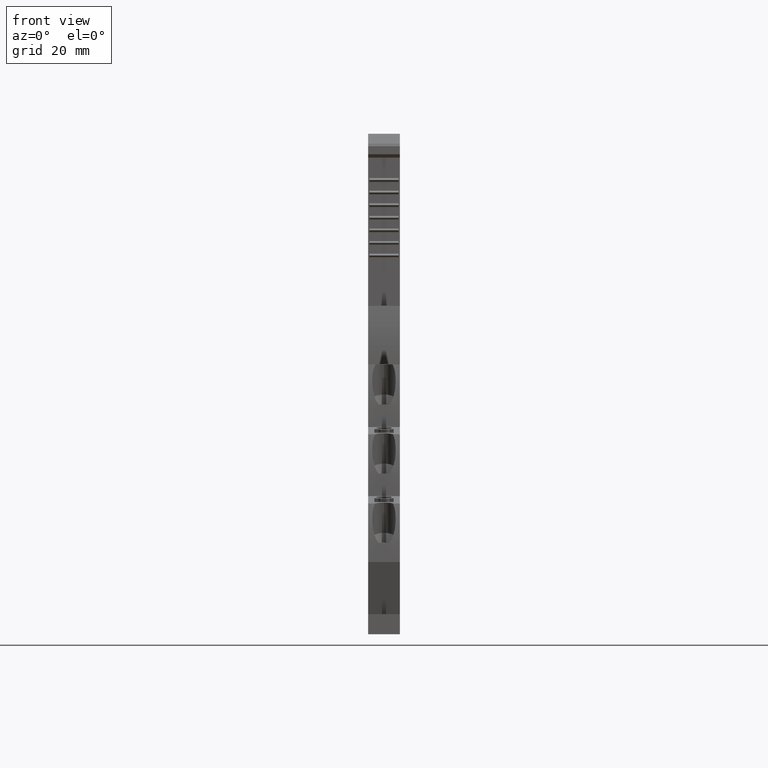
[diagram: clean part render]
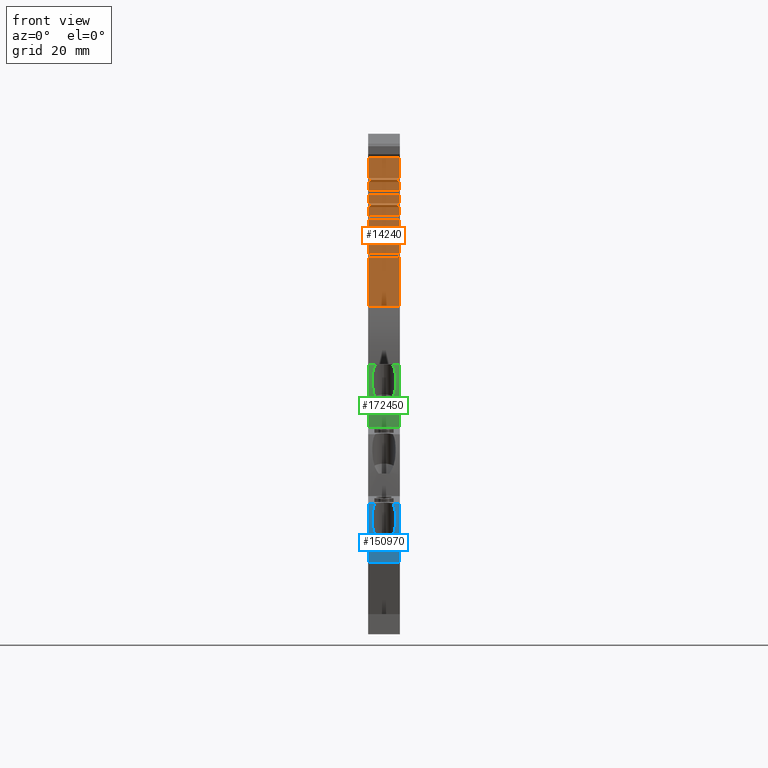
[diagram: same view with three faces highlighted in distinct colors, each labeled with its STEP entity id]
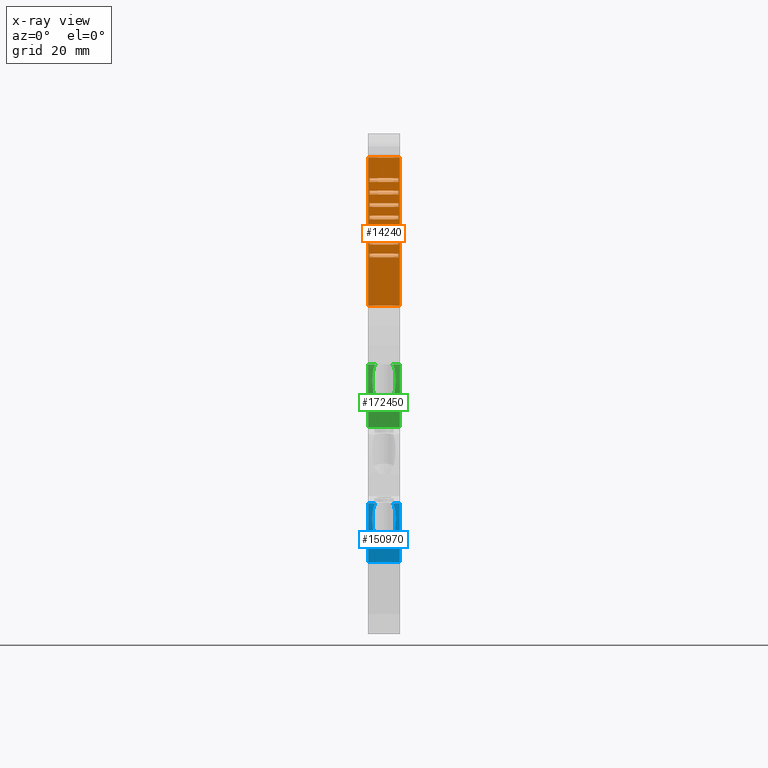
[diagram: x-ray of the same camera — body ghosted, the three highlighted faces saturated]
A machine part, front view with three faces highlighted in distinct colors.
The next image is the same camera in x-ray (body ghosted, the three faces saturated) — at least one of them is partly hidden behind the body in this view.
Their STEP definitions:

[orange] entity #14240 — the highlighted planar face has unit normal (-0, 1, -0).
#880=CARTESIAN_POINT('',(-32.2143223474418,87.6620689298493,
9.67371577147208E-8));
#890=VERTEX_POINT('',#880);
#920=CARTESIAN_POINT('',(-32.2143310897264,58.3109665443083,
6.43475239809484E-8));
#930=DIRECTION('',(2.97852011095547E-7,0.999999999999956,
1.10352358518995E-9));
#940=VECTOR('',#930,1.);
#950=LINE('',#920,#940);
#960=CARTESIAN_POINT('',(-32.2143310897266,58.3109665443082,
6.43475239809492E-8));
#970=VERTEX_POINT('',#960);
#980=EDGE_CURVE('',#970,#890,#950,.T.);
#11090=CARTESIAN_POINT('',(-32.2143310897266,58.3109665443082,0.1));
#11100=VERTEX_POINT('',#11090);
#11150=CARTESIAN_POINT('',(-32.2143310897266,58.3109665443082,0.));
#11160=DIRECTION('',(3.24428399143164E-16,-1.24896871109641E-20,1.));
#11170=VECTOR('',#11160,1.);
#11180=LINE('',#11150,#11170);
#11190=EDGE_CURVE('',#970,#11100,#11180,.T.);
#11310=CARTESIAN_POINT('',(-32.2143274041796,70.6847189324796,
7.80022515785963E-8));
#11320=DIRECTION('',(0.999999999999956,-2.97852008862565E-7,
-3.2442839914687E-16));
#11330=DIRECTION('',(2.97852008862565E-7,0.999999999999956,
1.10352358518995E-9));
#11340=AXIS2_PLACEMENT_3D('',#11310,#11320,#11330);
#11350=PLANE('',#11340);
#11360=CARTESIAN_POINT('',(-32.2143250430045,78.6120620819527,0.));
#11370=DIRECTION('',(-1.55164670466063E-15,-4.12022839850694E-9,-1.));
#11380=VECTOR('',#11370,1.);
#11390=LINE('',#11360,#11380);
#11400=CARTESIAN_POINT('',(-32.2143250430045,78.6120621068801,
6.05000054290741));
#11410=VERTEX_POINT('',#11400);
#11420=CARTESIAN_POINT('',(-32.2143250430045,78.6120620793876,
0.25000054290741));
#11430=VERTEX_POINT('',#11420);
#11440=EDGE_CURVE('',#11410,#11430,#11390,.T.);
#11450=ORIENTED_EDGE('',*,*,#11440,.F.);
#11460=CARTESIAN_POINT('',(-32.2143484577651,0.,0.250000629657584));
#11470=DIRECTION('',(-2.97852008862565E-7,-0.999999999999956,
1.10352243317071E-9));
#11480=VECTOR('',#11470,1.);
#11490=LINE('',#11460,#11480);
#11500=CARTESIAN_POINT('',(-32.2143252665163,77.8616497248532,
0.250000543735507));
#11510=VERTEX_POINT('',#11500);
#11520=EDGE_CURVE('',#11430,#11510,#11490,.T.);
#11530=ORIENTED_EDGE('',*,*,#11520,.F.);
#11540=CARTESIAN_POINT('',(-32.2143252665163,77.8616497253159,0.));
#11550=DIRECTION('',(-2.26831076595493E-16,-1.85078313854415E-9,1.));
#11560=VECTOR('',#11550,1.);
#11570=LINE('',#11540,#11560);
#11580=CARTESIAN_POINT('',(-32.2143252665163,77.8616497141186,
6.05000054373551));
#11590=VERTEX_POINT('',#11580);
#11600=EDGE_CURVE('',#11510,#11590,#11570,.T.);
#11610=ORIENTED_EDGE('',*,*,#11600,.F.);
#11620=CARTESIAN_POINT('',(-32.2143484577651,0.,6.05000062965759));
#11630=DIRECTION('',(-2.97852008862565E-7,-0.999999999999956,
1.10352243317071E-9));
#11640=VECTOR('',#11630,1.);
#11650=LINE('',#11620,#11640);
#11660=EDGE_CURVE('',#11410,#11590,#11650,.T.);
#11670=ORIENTED_EDGE('',*,*,#11660,.T.);
#11680=EDGE_LOOP('',(#11670,#11610,#11530,#11450));
#11690=FACE_BOUND('',#11680,.T.);
#11700=CARTESIAN_POINT('',(-32.214327494608,70.3811172634535,0.));
#11710=DIRECTION('',(-2.26831076595493E-16,-1.85078313854415E-9,1.));
#11720=VECTOR('',#11710,1.);
#11730=LINE('',#11700,#11720);
#11740=CARTESIAN_POINT('',(-32.214327494608,70.3811172629908,
0.250000551990444));
#11750=VERTEX_POINT('',#11740);
#11760=CARTESIAN_POINT('',(-32.214327494608,70.3811172522563,
6.05000055199045));
#11770=VERTEX_POINT('',#11760);
#11780=EDGE_CURVE('',#11750,#11770,#11730,.T.);
#11790=ORIENTED_EDGE('',*,*,#11780,.F.);
#11800=CARTESIAN_POINT('',(-32.2143484577651,0.,6.05000062965759));
#11810=DIRECTION('',(-2.97852008862565E-7,-0.999999999999956,
1.10352243317071E-9));
#11820=VECTOR('',#11810,1.);
#11830=LINE('',#11800,#11820);
#11840=CARTESIAN_POINT('',(-32.2143272827693,71.0923385866765,
6.0500005512056));
#11850=VERTEX_POINT('',#11840);
#11860=EDGE_CURVE('',#11850,#11770,#11830,.T.);
#11870=ORIENTED_EDGE('',*,*,#11860,.T.);
#11880=CARTESIAN_POINT('',(-32.2143272827693,71.0923385617491,0.));
#11890=DIRECTION('',(-1.55164670466063E-15,-4.12022839850694E-9,-1.));
#11900=VECTOR('',#11890,1.);
#11910=LINE('',#11880,#11900);
#11920=CARTESIAN_POINT('',(-32.2143272827693,71.0923385627792,
0.250000551205594));
#11930=VERTEX_POINT('',#11920);
#11940=EDGE_CURVE('',#11850,#11930,#11910,.T.);
#11950=ORIENTED_EDGE('',*,*,#11940,.F.);
#11960=CARTESIAN_POINT('',(-32.2143484577651,0.,0.250000629657584));
#11970=DIRECTION('',(-2.97852008862565E-7,-0.999999999999956,
1.10352243317071E-9));
#11980=VECTOR('',#11970,1.);
#11990=LINE('',#11960,#11980);
#12000=EDGE_CURVE('',#11930,#11750,#11990,.T.);
#12010=ORIENTED_EDGE('',*,*,#12000,.F.);
#12020=EDGE_LOOP('',(#12010,#11950,#11870,#11790));
#12030=FACE_BOUND('',#12020,.T.);
#12040=CARTESIAN_POINT('',(-32.2143267519108,72.8746280840744,0.));
#12050=DIRECTION('',(-2.26831076595493E-16,-1.85078313854415E-9,1.));
#12060=VECTOR('',#12050,1.);
#12070=LINE('',#12040,#12060);
#12080=CARTESIAN_POINT('',(-32.2143267519108,72.8746280836117,
0.250000549238797));
#12090=VERTEX_POINT('',#12080);
#12100=CARTESIAN_POINT('',(-32.2143267519108,72.8746280728771,
6.0500005492388));
#12110=VERTEX_POINT('',#12100);
#12120=EDGE_CURVE('',#12090,#12110,#12070,.T.);
#12130=ORIENTED_EDGE('',*,*,#12120,.F.);
#12140=CARTESIAN_POINT('',(-32.2143484577651,0.,6.05000062965759));
#12150=DIRECTION('',(-2.97852008862565E-7,-0.999999999999956,
1.10352243317071E-9));
#12160=VECTOR('',#12150,1.);
#12170=LINE('',#12140,#12160);
#12180=CARTESIAN_POINT('',(-32.214326536181,73.598913093411,
6.05000054843954));
#12190=VERTEX_POINT('',#12180);
#12200=EDGE_CURVE('',#12190,#12110,#12170,.T.);
#12210=ORIENTED_EDGE('',*,*,#12200,.T.);
#12220=CARTESIAN_POINT('',(-32.214326536181,73.5989130684836,0.));
#12230=DIRECTION('',(-1.55164670466063E-15,-4.12022839850694E-9,-1.));
#12240=VECTOR('',#12230,1.);
#12250=LINE('',#12220,#12240);
#12260=CARTESIAN_POINT('',(-32.214326536181,73.5989130529119,
0.250000548439532));
#12270=VERTEX_POINT('',#12260);
#12280=EDGE_CURVE('',#12190,#12270,#12250,.T.);
#12290=ORIENTED_EDGE('',*,*,#12280,.F.);
#12300=CARTESIAN_POINT('',(-32.2143484577651,0.,0.250000629657584));
#12310=DIRECTION('',(-2.97852008862565E-7,-0.999999999999956,
1.10352243317071E-9));
#12320=VECTOR('',#12310,1.);
#12330=LINE('',#12300,#12320);
#12340=EDGE_CURVE('',#12270,#12090,#12330,.T.);
#12350=ORIENTED_EDGE('',*,*,#12340,.F.);
#12360=EDGE_LOOP('',(#12350,#12290,#12210,#12130));
#12370=FACE_BOUND('',#12360,.T.);
#12380=CARTESIAN_POINT('',(-32.2143260092136,75.3681389046951,0.));
#12390=DIRECTION('',(-2.26831076595493E-16,-1.85078313854415E-9,1.));
#12400=VECTOR('',#12390,1.);
#12410=LINE('',#12380,#12400);
#12420=CARTESIAN_POINT('',(-32.2143260092136,75.3681389042324,
0.250000546487152));
#12430=VERTEX_POINT('',#12420);
#12440=CARTESIAN_POINT('',(-32.2143260092136,75.3681388934979,
6.05000054648715));
#12450=VERTEX_POINT('',#12440);
#12460=EDGE_CURVE('',#12430,#12450,#12410,.T.);
#12470=ORIENTED_EDGE('',*,*,#12460,.F.);
#12480=CARTESIAN_POINT('',(-32.2143484577651,0.,6.05000062965759));
#12490=DIRECTION('',(-2.97852008862565E-7,-0.999999999999956,
1.10352243317071E-9));
#12500=VECTOR('',#12490,1.);
#12510=LINE('',#12480,#12500);
#12520=CARTESIAN_POINT('',(-32.2143257895928,76.1054876001455,
6.05000054567347));
#12530=VERTEX_POINT('',#12520);
#12540=EDGE_CURVE('',#12530,#12450,#12510,.T.);
#12550=ORIENTED_EDGE('',*,*,#12540,.T.);
#12560=CARTESIAN_POINT('',(-32.2143257895928,76.1054875752181,0.));
#12570=DIRECTION('',(-1.55164670466063E-15,-4.12022839850694E-9,-1.));
#12580=VECTOR('',#12570,1.);
#12590=LINE('',#12560,#12580);
#12600=CARTESIAN_POINT('',(-32.2143257895928,76.1054875592681,
0.250000545673471));
#12610=VERTEX_POINT('',#12600);
#12620=EDGE_CURVE('',#12530,#12610,#12590,.T.);
#12630=ORIENTED_EDGE('',*,*,#12620,.F.);
#12640=CARTESIAN_POINT('',(-32.2143484577651,0.,0.250000629657584));
#12650=DIRECTION('',(-2.97852008862565E-7,-0.999999999999956,
1.10352243317071E-9));
#12660=VECTOR('',#12650,1.);
#12670=LINE('',#12640,#12660);
#12680=EDGE_CURVE('',#12610,#12430,#12670,.T.);
#12690=ORIENTED_EDGE('',*,*,#12680,.F.);
#12700=EDGE_LOOP('',(#12690,#12630,#12550,#12470));
#12710=FACE_BOUND('',#12700,.T.);
#12720=CARTESIAN_POINT('',(-32.2143280293575,68.5857640550146,0.));
#12730=DIRECTION('',(-1.55164670466063E-15,-4.12022839850694E-9,-1.));
#12740=VECTOR('',#12730,1.);
#12750=LINE('',#12720,#12740);
#12760=CARTESIAN_POINT('',(-32.2143280293575,68.5857640728843,
6.05000055397166));
#12770=VERTEX_POINT('',#12760);
#12780=CARTESIAN_POINT('',(-32.2143280293575,68.5857640560447,
0.250000553971655));
#12790=VERTEX_POINT('',#12780);
#12800=EDGE_CURVE('',#12770,#12790,#12750,.T.);
#12810=ORIENTED_EDGE('',*,*,#12800,.F.);
#12820=CARTESIAN_POINT('',(-32.2143484577651,0.,0.250000629657584));
#12830=DIRECTION('',(-2.97852008862565E-7,-0.999999999999956,
1.10352243317071E-9));
#12840=VECTOR('',#12830,1.);
#12850=LINE('',#12820,#12840);
#12860=CARTESIAN_POINT('',(-32.2143282373052,67.8876064423702,
0.250000554742087));
#12870=VERTEX_POINT('',#12860);
#12880=EDGE_CURVE('',#12790,#12870,#12850,.T.);
#12890=ORIENTED_EDGE('',*,*,#12880,.F.);
#12900=CARTESIAN_POINT('',(-32.2143282373052,67.8876064428328,0.));
#12910=DIRECTION('',(-2.26831076595493E-16,-1.85078313854415E-9,1.));
#12920=VECTOR('',#12910,1.);
#12930=LINE('',#12900,#12920);
#12940=CARTESIAN_POINT('',(-32.2143282373052,67.8876064161181,
6.05000055474209));
#12950=VERTEX_POINT('',#12940);
#12960=EDGE_CURVE('',#12870,#12950,#12930,.T.);
#12970=ORIENTED_EDGE('',*,*,#12960,.F.);
#12980=CARTESIAN_POINT('',(-32.2143484577651,0.,6.05000062965759));
#12990=DIRECTION('',(-2.97852008862565E-7,-0.999999999999956,
1.10352243317071E-9));
#13000=VECTOR('',#12990,1.);
#13010=LINE('',#12980,#13000);
#13020=EDGE_CURVE('',#12770,#12950,#13010,.T.);
#13030=ORIENTED_EDGE('',*,*,#13020,.T.);
#13040=EDGE_LOOP('',(#13030,#12970,#12890,#12810));
#13050=FACE_BOUND('',#13040,.T.);
#13060=CARTESIAN_POINT('',(-32.2143237811219,82.8486713665573,0.));
#13070=DIRECTION('',(-2.26831076595493E-16,-1.85078313854415E-9,1.));
#13080=VECTOR('',#13070,1.);
#13090=LINE('',#13060,#13080);
#13100=CARTESIAN_POINT('',(-32.2143237811219,82.8486713660946,
0.250000538232218));
#13110=VERTEX_POINT('',#13100);
#13120=CARTESIAN_POINT('',(-32.2143237811219,82.8486713553601,
6.05000053823222));
#13130=VERTEX_POINT('',#13120);
#13140=EDGE_CURVE('',#13110,#13130,#13090,.T.);
#13150=ORIENTED_EDGE('',*,*,#13140,.F.);
#13160=CARTESIAN_POINT('',(-32.2143484577651,0.,6.05000062965759));
#13170=DIRECTION('',(-2.97852008862565E-7,-0.999999999999956,
1.10352243317071E-9));
#13180=VECTOR('',#13170,1.);
#13190=LINE('',#13160,#13180);
#13200=CARTESIAN_POINT('',(-32.214323549828,83.6252111203491,
6.05000053737529));
#13210=VERTEX_POINT('',#13200);
#13220=EDGE_CURVE('',#13210,#13130,#13190,.T.);
#13230=ORIENTED_EDGE('',*,*,#13220,.T.);
#13240=CARTESIAN_POINT('',(-32.214323549828,83.6252110954218,0.));
#13250=DIRECTION('',(-1.55164670466063E-15,-4.12022839850694E-9,-1.));
#13260=VECTOR('',#13250,1.);
#13270=LINE('',#13240,#13260);
#13280=CARTESIAN_POINT('',(-32.214323549828,83.6252110964518,
0.250000537375287));
#13290=VERTEX_POINT('',#13280);
#13300=EDGE_CURVE('',#13210,#13290,#13270,.T.);
#13310=ORIENTED_EDGE('',*,*,#13300,.F.);
#13320=CARTESIAN_POINT('',(-32.2143484577651,0.,0.250000629657584));
#13330=DIRECTION('',(-2.97852008862565E-7,-0.999999999999956,
1.10352243317071E-9));
#13340=VECTOR('',#13330,1.);
#13350=LINE('',#13320,#13340);
#13360=EDGE_CURVE('',#13290,#13110,#13350,.T.);
#13370=ORIENTED_EDGE('',*,*,#13360,.F.);
#13380=EDGE_LOOP('',(#13370,#13310,#13230,#13150));
#13390=FACE_BOUND('',#13380,.T.);
#13400=CARTESIAN_POINT('',(-32.2143245238191,80.3551605459366,0.));
#13410=DIRECTION('',(-2.26831076595493E-16,-1.85078313854415E-9,1.));
#13420=VECTOR('',#13410,1.);
#13430=LINE('',#13400,#13420);
#13440=CARTESIAN_POINT('',(-32.2143245238191,80.3551605454739,
0.250000540983862));
#13450=VERTEX_POINT('',#13440);
#13460=CARTESIAN_POINT('',(-32.2143245238191,80.3551605347393,
6.05000054098386));
#13470=VERTEX_POINT('',#13460);
#13480=EDGE_CURVE('',#13450,#13470,#13430,.T.);
#13490=ORIENTED_EDGE('',*,*,#13480,.F.);
#13500=CARTESIAN_POINT('',(-32.2143484577651,0.,6.05000062965759));
#13510=DIRECTION('',(-2.97852008862565E-7,-0.999999999999956,
1.10352243317071E-9));
#13520=VECTOR('',#13510,1.);
#13530=LINE('',#13500,#13520);
#13540=CARTESIAN_POINT('',(-32.2143242964163,81.1186366136145,
6.05000054014135));
#13550=VERTEX_POINT('',#13540);
#13560=EDGE_CURVE('',#13550,#13470,#13530,.T.);
#13570=ORIENTED_EDGE('',*,*,#13560,.T.);
#13580=CARTESIAN_POINT('',(-32.2143242964163,81.1186365886871,0.));
#13590=DIRECTION('',(-1.55164670466063E-15,-4.12022839850694E-9,-1.));
#13600=VECTOR('',#13590,1.);
#13610=LINE('',#13580,#13600);
#13620=CARTESIAN_POINT('',(-32.2143242964163,81.1186365719804,
0.250000540141349));
#13630=VERTEX_POINT('',#13620);
#13640=EDGE_CURVE('',#13550,#13630,#13610,.T.);
#13650=ORIENTED_EDGE('',*,*,#13640,.F.);
#13660=CARTESIAN_POINT('',(-32.2143484577651,0.,0.250000629657584));
#13670=DIRECTION('',(-2.97852008862565E-7,-0.999999999999956,
1.10352243317071E-9));
#13680=VECTOR('',#13670,1.);
#13690=LINE('',#13660,#13680);
#13700=EDGE_CURVE('',#13630,#13450,#13690,.T.);
#13710=ORIENTED_EDGE('',*,*,#13700,.F.);
#13720=EDGE_LOOP('',(#13710,#13650,#13570,#13490));
#13730=FACE_BOUND('',#13720,.T.);
#13740=ORIENTED_EDGE('',*,*,#11190,.T.);
#13750=ORIENTED_EDGE('',*,*,#980,.F.);
#13760=CARTESIAN_POINT('',(-32.2143223474418,87.6620689298492,0.));
#13770=DIRECTION('',(-4.25831758759046E-18,-1.10352358519E-9,1.));
#13780=VECTOR('',#13770,1.);
#13790=LINE('',#13760,#13780);
#13800=CARTESIAN_POINT('',(-32.2143223474418,87.6620689228971,
6.30000000363741));
#13810=VERTEX_POINT('',#13800);
#13820=EDGE_CURVE('',#890,#13810,#13790,.T.);
#13830=ORIENTED_EDGE('',*,*,#13820,.F.);
#13840=CARTESIAN_POINT('',(-32.2143484577651,0.,6.30000000363738));
#13850=DIRECTION('',(2.97852008862565E-7,0.999999999999956,
3.78967331631682E-16));
#13860=VECTOR('',#13850,1.);
#13870=LINE('',#13840,#13860);
#13880=CARTESIAN_POINT('',(-32.2143310897266,58.3109665443096,
6.3000000036374));
#13890=VERTEX_POINT('',#13880);
#13900=EDGE_CURVE('',#13890,#13810,#13870,.T.);
#13910=ORIENTED_EDGE('',*,*,#13900,.T.);
#13920=CARTESIAN_POINT('',(-32.2143310897266,58.3109665443083,
6.30000000448426));
#13930=DIRECTION('',(0.,0.,-1.));
#13940=VECTOR('',#13930,1.);
#13950=LINE('',#13920,#13940);
#13960=CARTESIAN_POINT('',(-32.2143310897266,58.3109665443083,6.2));
#13970=VERTEX_POINT('',#13960);
#13980=EDGE_CURVE('',#13890,#13970,#13950,.T.);
#13990=ORIENTED_EDGE('',*,*,#13980,.F.);
#14000=CARTESIAN_POINT('',(-32.2143310897264,58.3109665443083,6.2));
#14010=DIRECTION('',(-2.97851983077681E-7,-0.999999999999956,0.));
#14020=VECTOR('',#14010,1.);
#14030=LINE('',#14000,#14020);
#14040=CARTESIAN_POINT('',(-32.2143311195118,58.2109665399162,6.2));
#14050=VERTEX_POINT('',#14040);
#14060=EDGE_CURVE('',#13970,#14050,#14030,.T.);
#14070=ORIENTED_EDGE('',*,*,#14060,.F.);
#14080=CARTESIAN_POINT('',(-32.2143311195118,58.2109665466478,
0.0999999999448238));
#14090=DIRECTION('',(0.,-1.10352412089834E-9,1.));
#14100=VECTOR('',#14090,1.);
#14110=LINE('',#14080,#14100);
#14120=CARTESIAN_POINT('',(-32.2143311195118,58.2109665466477,0.1));
#14130=VERTEX_POINT('',#14120);
#14140=EDGE_CURVE('',#14130,#14050,#14110,.T.);
#14150=ORIENTED_EDGE('',*,*,#14140,.T.);
#14160=CARTESIAN_POINT('',(-32.2143484577651,0.,0.1));
#14170=DIRECTION('',(-2.97852008862565E-7,-0.999999999999956,
-1.25466755312043E-20));
#14180=VECTOR('',#14170,1.);
#14190=LINE('',#14160,#14180);
#14200=EDGE_CURVE('',#11100,#14130,#14190,.T.);
#14210=ORIENTED_EDGE('',*,*,#14200,.T.);
#14220=EDGE_LOOP('',(#14210,#14150,#14070,#13990,#13910,#13830,#13750,
#13740));
#14230=FACE_OUTER_BOUND('',#14220,.T.);
#14240=ADVANCED_FACE('',(#11690,#12030,#12370,#12710,#13050,#13390,
#13730,#14230),#11350,.F.);

[blue] entity #150970 — the highlighted cylindrical surface (partial cylindrical patch) has radius 50 mm, axis along (1, -0, -0).
#20060=CARTESIAN_POINT('',(-74.3193258147242,18.9749312027264,
2.09392807915855E-8));
#20070=VERTEX_POINT('',#20060);
#20100=CARTESIAN_POINT('',(-25.6892608432084,7.3509568021111,
8.1119513567074E-9));
#20110=DIRECTION('',(4.25831750061423E-18,1.10352358519E-9,-1.));
#20120=DIRECTION('',(-0.999976083260332,0.00691613384236382,
7.63211255516355E-12));
#20130=AXIS2_PLACEMENT_3D('',#20100,#20110,#20120);
#20140=CIRCLE('',#20130,50.);
#20150=CARTESIAN_POINT('',(-75.6892600077674,7.34181655580547,
8.10186490216067E-9));
#20160=VERTEX_POINT('',#20150);
#20170=EDGE_CURVE('',#20160,#20070,#20140,.T.);
#29020=CARTESIAN_POINT('',(-75.6892600077674,7.34181654885329,
6.29999994832275));
#29030=VERTEX_POINT('',#29020);
#29060=CARTESIAN_POINT('',(-25.6892608432084,7.3509567951589,
6.30000001193947));
#29070=DIRECTION('',(-7.92613670502504E-18,-1.10352358433843E-9,1.));
#29080=DIRECTION('',(-0.974090670017604,0.22615783555883,
2.49570497601326E-10));
#29090=AXIS2_PLACEMENT_3D('',#29060,#29070,#29080);
#29100=CIRCLE('',#29090,50.);
#29110=CARTESIAN_POINT('',(-74.3193258147242,18.9749311957742,
6.29999995006576));
#29120=VERTEX_POINT('',#29110);
#29130=EDGE_CURVE('',#29120,#29030,#29100,.T.);
#149210=CARTESIAN_POINT('',(-75.6892600077674,7.34181655580547,
8.10186466641882E-9));
#149220=DIRECTION('',(-4.25831752161686E-18,-1.10352358519E-9,1.));
#149230=VECTOR('',#149220,1.);
#149240=LINE('',#149210,#149230);
#149250=EDGE_CURVE('',#20160,#29030,#149240,.T.);
#149510=CARTESIAN_POINT('',(-25.6892608432084,7.3509568021111,
8.1119513567074E-9));
#149520=DIRECTION('',(-4.25831752161686E-18,-1.10352358519E-9,1.));
#149530=DIRECTION('',(1.,0.,4.25831752161686E-18));
#149540=AXIS2_PLACEMENT_3D('',#149510,#149520,#149530);
#149550=CYLINDRICAL_SURFACE('',#149540,50.);
#149560=CARTESIAN_POINT('',(-74.8724914011453,14.9367966716274,
3.05000009211796));
#149570=DIRECTION('',(0.390731082786406,-0.920504872852155,
3.8790817920332E-10));
#149580=DIRECTION('',(-0.920504872852155,-0.390731082786406,
-2.3333461952119E-9));
#149590=AXIS2_PLACEMENT_3D('',#149560,#149570,#149580);
#149600=CYLINDRICAL_SURFACE('',#149590,2.40000000000534);
#149610=CARTESIAN_POINT('',(-75.0459900437086,15.3455351232188,
5.45000009195101));
#149620=CARTESIAN_POINT('',(-75.10569514753,14.9769292355008,
5.45000013119511));
#149630=CARTESIAN_POINT('',(-75.1612524746313,14.6076367537863,
5.42549816217903));
#149640=CARTESIAN_POINT('',(-75.2123210516257,14.2405509492076,
5.37764678760847));
#149650=CARTESIAN_POINT('',(-75.2634343136721,13.8731439442103,
5.3297535430409));
#149660=CARTESIAN_POINT('',(-75.3102339803976,13.5064439174281,
5.2582400352505));
#149670=CARTESIAN_POINT('',(-75.3521894035882,13.1469491020186,
5.16147269507631));
#149680=CARTESIAN_POINT('',(-75.3941570410602,12.7873496286052,
5.06467718348982));
#149690=CARTESIAN_POINT('',(-75.4312699401871,12.4351695934841,
4.94338782858459));
#149700=CARTESIAN_POINT('',(-75.4636817688736,12.0951133619814,
4.78854499759829));
#149710=CARTESIAN_POINT('',(-75.4959712413141,11.7563408594636,
4.63428670590826));
#149720=CARTESIAN_POINT('',(-75.5236920870261,11.4266809049814,
4.44637317238107));
#149730=CARTESIAN_POINT('',(-75.5454068805918,11.141036255532,
4.20728596922176));
#149740=B_SPLINE_CURVE_WITH_KNOTS('',3,(#149610,#149620,#149630,#149640,
#149650,#149660,#149670,#149680,#149690,#149700,#149710,#149720,#149730)
,.UNSPECIFIED.,.F.,.F.,(4,3,3,3,4),(0.,1.12056555679303,2.24491725639276
,3.36774418116456,4.49134401465653),.UNSPECIFIED.);
#149750=SURFACE_CURVE('',#149740,(#149600,#149550),.CURVE_3D.);
#149760=CARTESIAN_POINT('',(-75.0459900437086,15.3455351232188,
5.45000009195101));
#149770=VERTEX_POINT('',#149760);
#149780=CARTESIAN_POINT('',(-75.545406880507,11.1410362567347,
4.20728596921744));
#149790=VERTEX_POINT('',#149780);
#149800=EDGE_CURVE('',#149770,#149790,#149750,.T.);
#149810=ORIENTED_EDGE('',*,*,#149800,.T.);
#149820=CARTESIAN_POINT('',(-25.6892608432084,7.3509567960969,
5.450000201303));
#149830=DIRECTION('',(9.14599996178806E-18,1.10352358439832E-9,-1.));
#149840=DIRECTION('',(-0.98713458688529,0.15989154879107,
1.76444086008587E-10));
#149850=AXIS2_PLACEMENT_3D('',#149820,#149830,#149840);
#149860=CIRCLE('',#149850,50.);
#149870=CARTESIAN_POINT('',(-74.8569826326739,16.4358417176902,
5.4500000930092));
#149880=VERTEX_POINT('',#149870);
#149890=EDGE_CURVE('',#149770,#149880,#149860,.T.);
#149900=ORIENTED_EDGE('',*,*,#149890,.F.);
#149910=CARTESIAN_POINT('',(-73.3502891594936,12.8862953988871,
3.0500000945042));
#149920=DIRECTION('',(-0.390731082790663,0.920504872850349,
-3.87834404964313E-10));
#149930=DIRECTION('',(0.920504872850349,0.390731082790663,
2.34003155988996E-9));
#149940=AXIS2_PLACEMENT_3D('',#149910,#149920,#149930);
#149950=CYLINDRICAL_SURFACE('',#149940,2.4);
#149960=CARTESIAN_POINT('',(-74.3193258147241,18.9749311972818,
4.93382135176862));
#149970=CARTESIAN_POINT('',(-74.3660630097971,18.7794014450762,
5.0280880019767));
#149980=CARTESIAN_POINT('',(-74.4134333218806,18.5759433846797,
5.10693736688872));
#149990=CARTESIAN_POINT('',(-74.4603355348481,18.3683191587156,
5.1725375932925));
#150000=CARTESIAN_POINT('',(-74.5072735989685,18.1605362287717,
5.23818796325229));
#150010=CARTESIAN_POINT('',(-74.5536293677247,17.9491213387877,
5.29042679175008));
#150020=CARTESIAN_POINT('',(-74.5989444421061,17.7356980186243,
5.33130463573307));
#150030=CARTESIAN_POINT('',(-74.6443038464573,17.5220659147511,
5.37222246891644));
#150040=CARTESIAN_POINT('',(-74.6886773924862,17.3061610811427,
5.40177505147993));
#150050=CARTESIAN_POINT('',(-74.7317529473209,17.0892301655761,
5.42121825539722));
#150060=CARTESIAN_POINT('',(-74.774834639836,16.8722683403063,
5.44066422970647));
#150070=CARTESIAN_POINT('',(-74.8166420615451,16.6541663298559,
5.45000012392432));
#150080=CARTESIAN_POINT('',(-74.856982632654,16.4358417176865,
5.45000009300867));
#150090=B_SPLINE_CURVE_WITH_KNOTS('',3,(#149960,#149970,#149980,#149990,
#150000,#150010,#150020,#150030,#150040,#150050,#150060,#150070,#150080)
,.UNSPECIFIED.,.F.,.F.,(4,3,3,3,4),(0.,0.667513679375471,1.3346826625279
,2.00101692647739,2.66713861002035),.UNSPECIFIED.);
#150100=SURFACE_CURVE('',#150090,(#149950,#149550),.CURVE_3D.);
#150110=CARTESIAN_POINT('',(-74.3193258147241,18.9749311972818,
4.93382135176862));
#150120=VERTEX_POINT('',#150110);
#150130=EDGE_CURVE('',#150120,#149880,#150100,.T.);
#150140=ORIENTED_EDGE('',*,*,#150130,.T.);
#150150=CARTESIAN_POINT('',(-74.3193258147241,18.9749312027264,
2.09392810543489E-8));
#150160=DIRECTION('',(-4.25831752161686E-18,-1.10352358519E-9,1.));
#150170=VECTOR('',#150160,1.);
#150180=LINE('',#150150,#150170);
#150190=EDGE_CURVE('',#150120,#29120,#150180,.T.);
#150200=ORIENTED_EDGE('',*,*,#150190,.F.);
#150210=ORIENTED_EDGE('',*,*,#29130,.F.);
#150220=ORIENTED_EDGE('',*,*,#149250,.T.);
#150230=ORIENTED_EDGE('',*,*,#20170,.F.);
#150240=CARTESIAN_POINT('',(-74.3193258147241,18.9749312027264,
2.09392810543489E-8));
#150250=DIRECTION('',(-4.25831752161686E-18,-1.10352358519E-9,1.));
#150260=VECTOR('',#150250,1.);
#150270=LINE('',#150240,#150260);
#150280=CARTESIAN_POINT('',(-74.3193258147241,18.9749312012187,
1.36617883447936));
#150290=VERTEX_POINT('',#150280);
#150300=EDGE_CURVE('',#20070,#150290,#150270,.T.);
#150310=ORIENTED_EDGE('',*,*,#150300,.F.);
#150320=CARTESIAN_POINT('',(-73.3502891599546,12.8862953987751,
3.25000009477781));
#150330=DIRECTION('',(-0.390731082790663,0.920504872850349,
-3.83954258107071E-10));
#150340=DIRECTION('',(0.920504872850349,0.390731082790663,
2.34054219565957E-9));
#150350=AXIS2_PLACEMENT_3D('',#150320,#150330,#150340);
#150360=CYLINDRICAL_SURFACE('',#150350,2.4);
#150370=CARTESIAN_POINT('',(-74.8569822333841,16.4358438835707,
0.850000093297283));
#150380=CARTESIAN_POINT('',(-74.8166417050931,16.6541682103077,
0.850000124187353));
#150390=CARTESIAN_POINT('',(-74.7748346891008,16.8722681308808,
0.85933589162387));
#150400=CARTESIAN_POINT('',(-74.7317526590575,17.0892316222998,
0.878782060975699));
#150410=CARTESIAN_POINT('',(-74.6886762555008,17.3061667784209,
0.898225690669822));
#150420=CARTESIAN_POINT('',(-74.6443047111205,17.5220618233128,
0.927776973987503));
#150430=CARTESIAN_POINT('',(-74.5989446789668,17.7356969078814,
0.968695336826546));
#150440=CARTESIAN_POINT('',(-74.5536276043495,17.9491296725555,
1.00957494854536));
#150450=CARTESIAN_POINT('',(-74.5072781225334,18.1605159069061,
1.06180651678931));
#150460=CARTESIAN_POINT('',(-74.460338974041,18.368303938732,
1.1274577826906));
#150470=CARTESIAN_POINT('',(-74.413436695688,18.5759287555454,
1.19305748030818));
#150480=CARTESIAN_POINT('',(-74.3660644647549,18.7793953622594,
1.27190924967483));
#150490=CARTESIAN_POINT('',(-74.3193258147241,18.9749312012188,
1.36617883447935));
#150500=B_SPLINE_CURVE_WITH_KNOTS('',3,(#150370,#150380,#150390,#150400,
#150410,#150420,#150430,#150440,#150450,#150460,#150470,#150480,#150490)
,.UNSPECIFIED.,.F.,.F.,(4,3,3,3,4),(0.,0.66612097185306,1.33245258956508
,1.99960640006842,2.66713641163688),.UNSPECIFIED.);
#150510=SURFACE_CURVE('',#150500,(#150360,#149550),.CURVE_3D.);
#150520=CARTESIAN_POINT('',(-74.8569822334122,16.4358438835759,
0.850000093297196));
#150530=VERTEX_POINT('',#150520);
#150540=EDGE_CURVE('',#150530,#150290,#150510,.T.);
#150550=ORIENTED_EDGE('',*,*,#150540,.T.);
#150560=CARTESIAN_POINT('',(-25.6892608432084,7.3509568011731,
0.850000201508021));
#150570=DIRECTION('',(-4.80635114721284E-18,-1.10352358508874E-9,1.));
#150580=DIRECTION('',(-0.983354431765362,0.18169772020425,
2.00507714875897E-10));
#150590=AXIS2_PLACEMENT_3D('',#150560,#150570,#150580);
#150600=CIRCLE('',#150590,50.);
#150610=CARTESIAN_POINT('',(-75.0459903284602,15.3455333703028,
0.85000009226412));
#150620=VERTEX_POINT('',#150610);
#150630=EDGE_CURVE('',#150530,#150620,#150600,.T.);
#150640=ORIENTED_EDGE('',*,*,#150630,.F.);
#150650=CARTESIAN_POINT('',(-74.8724914016064,14.9367966715155,
3.25000009243987));
#150660=DIRECTION('',(0.390731082786406,-0.920504872852155,
3.83880413603435E-10));
#150670=DIRECTION('',(-0.920504872852155,-0.390731082786406,
-2.34722746002397E-9));
#150680=AXIS2_PLACEMENT_3D('',#150650,#150660,#150670);
#150690=CYLINDRICAL_SURFACE('',#150680,2.40000000000534);
#150700=CARTESIAN_POINT('',(-75.5454068804161,11.1410362602637,
2.09271421334529));
#150710=CARTESIAN_POINT('',(-75.5235870364342,11.4280627831712,
1.85247037043171));
#150720=CARTESIAN_POINT('',(-75.4959143435935,11.7569604257091,
1.66540658277399));
#150730=CARTESIAN_POINT('',(-75.4636518233145,12.0954275358922,
1.51131214271222));
#150740=CARTESIAN_POINT('',(-75.4312223993621,12.4356456377384,
1.35642052599205));
#150750=CARTESIAN_POINT('',(-75.3937415797428,12.7910165053783,
1.23424929971866));
#150760=CARTESIAN_POINT('',(-75.3519892519069,13.1486638479432,
1.13806613061777));
#150770=CARTESIAN_POINT('',(-75.3101114905322,13.5073856448947,
1.04159400528637));
#150780=CARTESIAN_POINT('',(-75.2634125907905,13.873289542731,
0.970236090561872));
#150790=CARTESIAN_POINT('',(-75.2123480750996,14.2403567040238,
0.922378720391952));
#150800=CARTESIAN_POINT('',(-75.1613023147405,14.6072890463266,
0.874538927611112));
#150810=CARTESIAN_POINT('',(-75.1056998842317,14.9768999140573,
0.850000131746845));
#150820=CARTESIAN_POINT('',(-75.0459903284602,15.3455333703028,
0.85000009226412));
#150830=B_SPLINE_CURVE_WITH_KNOTS('',3,(#150700,#150710,#150720,#150730,
#150740,#150750,#150760,#150770,#150780,#150790,#150800,#150810,#150820)
,.UNSPECIFIED.,.F.,.F.,(4,3,3,3,4),(0.,1.12394642203081,2.24821388552456
,3.37058082331274,4.49134235135518),.UNSPECIFIED.);
#150840=SURFACE_CURVE('',#150830,(#150690,#149550),.CURVE_3D.);
#150850=CARTESIAN_POINT('',(-75.5454068804117,11.1410362603065,
2.09271421330427));
#150860=VERTEX_POINT('',#150850);
#150870=EDGE_CURVE('',#150860,#150620,#150840,.T.);
#150880=ORIENTED_EDGE('',*,*,#150870,.T.);
#150890=CARTESIAN_POINT('',(-75.5454068802367,11.1410362649337,
1.22943932213731E-8));
#150900=DIRECTION('',(4.25831752161686E-18,1.10352358519E-9,-1.));
#150910=VECTOR('',#150900,1.);
#150920=LINE('',#150890,#150910);
#150930=EDGE_CURVE('',#149790,#150860,#150920,.T.);
#150940=ORIENTED_EDGE('',*,*,#150930,.T.);
#150950=EDGE_LOOP('',(#150940,#150880,#150640,#150550,#150310,#150230,
#150220,#150210,#150200,#150140,#149900,#149810));
#150960=FACE_OUTER_BOUND('',#150950,.T.);
#150970=ADVANCED_FACE('',(#150960),#149550,.T.);

[green] entity #172450 — the highlighted cylindrical surface (partial cylindrical patch) has radius 50 mm, axis along (1, -0, -0).
#19720=CARTESIAN_POINT('',(-56.6854746108229,46.5999999451111,
5.14241960291561E-8));
#19730=VERTEX_POINT('',#19720);
#19760=CARTESIAN_POINT('',(-8.09086788721554,34.828670479926,
3.84342565422136E-8));
#19770=DIRECTION('',(4.25831752161686E-18,1.10352358519E-9,-1.));
#19780=DIRECTION('',(1.,0.,4.25831752161686E-18));
#19790=AXIS2_PLACEMENT_3D('',#19760,#19770,#19780);
#19800=CIRCLE('',#19790,50.);
#19810=CARTESIAN_POINT('',(-58.0865325848402,34.1702546214415,
3.77076786952447E-8));
#19820=VERTEX_POINT('',#19810);
#19830=EDGE_CURVE('',#19820,#19730,#19800,.T.);
#29360=CARTESIAN_POINT('',(-58.0865325848402,34.1702546144893,
6.2999999707193));
#29370=VERTEX_POINT('',#29360);
#29400=CARTESIAN_POINT('',(-8.09086788721554,34.8286704729738,
6.30000003433051));
#29410=DIRECTION('',(-4.25831752161686E-18,-1.10352358519E-9,1.));
#29420=DIRECTION('',(1.,0.,4.25831752161686E-18));
#29430=AXIS2_PLACEMENT_3D('',#29400,#29410,#29420);
#29440=CIRCLE('',#29430,50.);
#29450=CARTESIAN_POINT('',(-56.6854746108229,46.5999999381589,
6.29999997250192));
#29460=VERTEX_POINT('',#29450);
#29470=EDGE_CURVE('',#29460,#29370,#29440,.T.);
#163950=CARTESIAN_POINT('',(-58.08653258484,34.1702546214415,
3.77076789006154E-8));
#163960=DIRECTION('',(4.25831752161686E-18,1.10352358519E-9,-1.));
#163970=VECTOR('',#163960,1.);
#163980=LINE('',#163950,#163970);
#163990=EDGE_CURVE('',#29370,#19820,#163980,.T.);
#170990=CARTESIAN_POINT('',(-8.09086788721554,34.828670479926,
3.84342565422135E-8));
#171000=DIRECTION('',(-4.25831752161686E-18,-1.10352358519E-9,1.));
#171010=DIRECTION('',(1.,0.,4.25831752161686E-18));
#171020=AXIS2_PLACEMENT_3D('',#170990,#171000,#171010);
#171030=CYLINDRICAL_SURFACE('',#171020,50.);
#171040=CARTESIAN_POINT('',(-57.2740984451525,42.4145103494423,
3.0500001670288));
#171050=DIRECTION('',(0.390731082786406,-0.920504872852155,
3.8790817920332E-10));
#171060=DIRECTION('',(-0.920504872852155,-0.390731082786406,
-2.3333461952119E-9));
#171070=AXIS2_PLACEMENT_3D('',#171040,#171050,#171060);
#171080=CYLINDRICAL_SURFACE('',#171070,2.40000000000534);
#171090=CARTESIAN_POINT('',(-57.9470139246025,38.6187499333551,
4.20728604412063));
#171100=CARTESIAN_POINT('',(-57.9253316380111,38.9039669737067,
4.44601533452818));
#171110=CARTESIAN_POINT('',(-57.8975515806998,39.2343605739929,
4.63445447809569));
#171120=CARTESIAN_POINT('',(-57.8652545940054,39.5731860413714,
4.78870852697851));
#171130=CARTESIAN_POINT('',(-57.8328819235003,39.9128055024061,
4.94332405027227));
#171140=CARTESIAN_POINT('',(-57.7957320146446,40.265362667563,
5.06477774196169));
#171150=CARTESIAN_POINT('',(-57.7537508437578,40.6250535227169,
5.16157793773759));
#171160=CARTESIAN_POINT('',(-57.7117805142577,40.9846514898555,
5.25835313544103));
#171170=CARTESIAN_POINT('',(-57.664973684338,41.3513452287232,
5.32981810969));
#171180=CARTESIAN_POINT('',(-57.6139251121076,41.7182860728358,
5.37764965806744));
#171190=CARTESIAN_POINT('',(-57.5628892326959,42.0851356800459,
5.42546931351341));
#171200=CARTESIAN_POINT('',(-57.5072908966832,42.4547126452068,
5.4500002061008));
#171210=CARTESIAN_POINT('',(-57.4475970877076,42.8232488010843,
5.45000016686185));
#171220=B_SPLINE_CURVE_WITH_KNOTS('',3,(#171090,#171100,#171110,#171120,
#171130,#171140,#171150,#171160,#171170,#171180,#171190,#171200,#171210)
,.UNSPECIFIED.,.F.,.F.,(4,3,3,3,4),(0.,1.12399588092714,2.2468340676492,
3.37080038014135,4.49134410457776),.UNSPECIFIED.);
#171230=SURFACE_CURVE('',#171220,(#171030,#171080),.CURVE_3D.);
#171240=CARTESIAN_POINT('',(-57.9470139245142,38.6187499345487,
4.20728604411905));
#171250=VERTEX_POINT('',#171240);
#171260=CARTESIAN_POINT('',(-57.4475971285336,42.8232485490334,
5.45000028503603));
#171270=VERTEX_POINT('',#171260);
#171280=EDGE_CURVE('',#171250,#171270,#171230,.T.);
#171290=ORIENTED_EDGE('',*,*,#171280,.F.);
#171300=CARTESIAN_POINT('',(-8.09086788721554,34.8286704739118,
5.45000027621383));
#171310=DIRECTION('',(9.14599830742684E-18,1.10352358439832E-9,-1.));
#171320=DIRECTION('',(-0.987134586885291,0.159891548791069,
1.76444086008587E-10));
#171330=AXIS2_PLACEMENT_3D('',#171300,#171310,#171320);
#171340=CIRCLE('',#171330,50.);
#171350=CARTESIAN_POINT('',(-57.2585896531961,43.9135555223381,
5.45000028623921));
#171360=VERTEX_POINT('',#171350);
#171370=EDGE_CURVE('',#171270,#171360,#171340,.T.);
#171380=ORIENTED_EDGE('',*,*,#171370,.F.);
#171390=CARTESIAN_POINT('',(-55.7518962035008,40.364009076702,
3.05000017906454));
#171400=DIRECTION('',(-0.390731082790663,0.920504872850349,
-3.87834404964313E-10));
#171410=DIRECTION('',(0.920504872850349,0.390731082790663,
2.34003155988996E-9));
#171420=AXIS2_PLACEMENT_3D('',#171390,#171400,#171410);
#171430=CYLINDRICAL_SURFACE('',#171420,2.4);
#171440=CARTESIAN_POINT('',(-57.2585896532301,43.9135555223444,
5.45000017756906));
#171450=CARTESIAN_POINT('',(-57.2157412165548,44.1454527892146,
5.45000020655252));
#171460=CARTESIAN_POINT('',(-57.1712432071688,44.3770697222555,
5.43947631007569));
#171470=CARTESIAN_POINT('',(-57.1253060969765,44.6074162756054,
5.4174716334056));
#171480=CARTESIAN_POINT('',(-57.0794131390753,44.8375414321795,
5.39548810645273));
#171490=CARTESIAN_POINT('',(-57.0319756056734,45.0669256021987,
5.36200434340025));
#171500=CARTESIAN_POINT('',(-56.9833857773714,45.2939317876058,
5.31531592304114));
#171510=CARTESIAN_POINT('',(-56.9348212617968,45.5208197148116,
5.26865182487661));
#171520=CARTESIAN_POINT('',(-56.8851835056992,45.7449371897835,
5.20886634971337));
#171530=CARTESIAN_POINT('',(-56.8353308895986,45.9631810880822,
5.13393787613601));
#171540=CARTESIAN_POINT('',(-56.7856070385427,46.1808612810527,
5.05920293639907));
#171550=CARTESIAN_POINT('',(-56.7351388336735,46.3949752323667,
4.96866834662165));
#171560=CARTESIAN_POINT('',(-56.6854746108412,46.5999999396736,
4.85896099794799));
#171570=B_SPLINE_CURVE_WITH_KNOTS('',3,(#171440,#171450,#171460,#171470,
#171480,#171490,#171500,#171510,#171520,#171530,#171540,#171550,#171560)
,.UNSPECIFIED.,.F.,.F.,(4,3,3,3,4),(0.,0.707557479209272,
1.41632444615473,2.12581034371952,2.83619311496291),.UNSPECIFIED.);
#171580=SURFACE_CURVE('',#171570,(#171030,#171430),.CURVE_3D.);
#171590=CARTESIAN_POINT('',(-56.6854746108229,46.5999999397491,
4.8589609979076));
#171600=VERTEX_POINT('',#171590);
#171610=EDGE_CURVE('',#171360,#171600,#171580,.T.);
#171620=ORIENTED_EDGE('',*,*,#171610,.F.);
#171630=CARTESIAN_POINT('',(-56.6854746108229,46.5999999451111,
5.1424196029156E-8));
#171640=DIRECTION('',(-4.25831752161686E-18,-1.10352358519E-9,1.));
#171650=VECTOR('',#171640,1.);
#171660=LINE('',#171630,#171650);
#171670=EDGE_CURVE('',#171600,#29460,#171660,.T.);
#171680=ORIENTED_EDGE('',*,*,#171670,.F.);
#171690=ORIENTED_EDGE('',*,*,#29470,.F.);
#171700=ORIENTED_EDGE('',*,*,#163990,.F.);
#171710=ORIENTED_EDGE('',*,*,#19830,.F.);
#171720=CARTESIAN_POINT('',(-56.6854746108229,46.5999999451111,
5.1424196029156E-8));
#171730=DIRECTION('',(-4.25831752161686E-18,-1.10352358519E-9,1.));
#171740=VECTOR('',#171730,1.);
#171750=LINE('',#171720,#171740);
#171760=CARTESIAN_POINT('',(-56.6854746108229,46.5999999435209,
1.44103934782693));
#171770=VERTEX_POINT('',#171760);
#171780=EDGE_CURVE('',#19730,#171770,#171750,.T.);
#171790=ORIENTED_EDGE('',*,*,#171780,.F.);
#171800=CARTESIAN_POINT('',(-55.7518962039619,40.3640090765901,
3.25000016968864));
#171810=DIRECTION('',(-0.390731082790663,0.920504872850349,
-3.83954258107071E-10));
#171820=DIRECTION('',(0.920504872850349,0.390731082790663,
2.34054219565957E-9));
#171830=AXIS2_PLACEMENT_3D('',#171800,#171810,#171820);
#171840=CYLINDRICAL_SURFACE('',#171830,2.4);
#171850=CARTESIAN_POINT('',(-56.6854746108412,46.5999999434454,
1.44103934778655));
#171860=CARTESIAN_POINT('',(-56.73513879792,46.3949753839788,
1.33133207806711));
#171870=CARTESIAN_POINT('',(-56.7856069669255,46.1808615891574,
1.24079753822512));
#171880=CARTESIAN_POINT('',(-56.8353307826229,45.9631815607774,
1.16606263034196));
#171890=CARTESIAN_POINT('',(-56.88518336337,45.7449378270724,
1.09113418855561));
#171900=CARTESIAN_POINT('',(-56.9348210851098,45.5208205228696,
1.03134872538795));
#171910=CARTESIAN_POINT('',(-56.9833855689319,45.2939327661904,
0.984684622938462));
#171920=CARTESIAN_POINT('',(-57.0319753651127,45.0669267530442,
0.937996198630557));
#171930=CARTESIAN_POINT('',(-57.0794128705358,44.8375427474096,
0.904512414397725));
#171940=CARTESIAN_POINT('',(-57.1253058012301,44.6074177635973,
0.88252885398971));
#171950=CARTESIAN_POINT('',(-57.171242884617,44.377071381031,
0.860524143627422));
#171960=CARTESIAN_POINT('',(-57.2157408699583,44.1454546175223,
0.850000199716226));
#171970=CARTESIAN_POINT('',(-57.2585892853162,43.9135575185836,
0.85000016820805));
#171980=B_SPLINE_CURVE_WITH_KNOTS('',3,(#171850,#171860,#171870,#171880,
#171890,#171900,#171910,#171920,#171930,#171940,#171950,#171960,#171970)
,.UNSPECIFIED.,.F.,.F.,(4,3,3,3,4),(0.,0.71038226413653,1.41986765208905
,2.12863411580303,2.8361910888817),.UNSPECIFIED.);
#171990=SURFACE_CURVE('',#171980,(#171030,#171840),.CURVE_3D.);
#172000=CARTESIAN_POINT('',(-57.2585892852822,43.9135575185773,
0.850000286444248));
#172010=VERTEX_POINT('',#172000);
#172020=EDGE_CURVE('',#171770,#172010,#171990,.T.);
#172030=ORIENTED_EDGE('',*,*,#172020,.F.);
#172040=CARTESIAN_POINT('',(-8.09086788721554,34.828670478988,
0.850000276418861));
#172050=DIRECTION('',(-4.8063504492792E-18,-1.10352358508874E-9,1.));
#172060=DIRECTION('',(-0.983354431765362,0.181697720204249,
2.00507714875897E-10));
#172070=AXIS2_PLACEMENT_3D('',#172040,#172050,#172060);
#172080=CIRCLE('',#172070,50.);
#172090=CARTESIAN_POINT('',(-57.4475973725064,42.8232470478763,
0.850000285241065));
#172100=VERTEX_POINT('',#172090);
#172110=EDGE_CURVE('',#172010,#172100,#172080,.T.);
#172120=ORIENTED_EDGE('',*,*,#172110,.F.);
#172130=CARTESIAN_POINT('',(-57.2740984456136,42.4145103493305,
3.2500001673507));
#172140=DIRECTION('',(0.390731082786406,-0.920504872852155,
3.83880413603435E-10));
#172150=DIRECTION('',(-0.920504872852155,-0.390731082786406,
-2.34722746002397E-9));
#172160=AXIS2_PLACEMENT_3D('',#172130,#172140,#172150);
#172170=CYLINDRICAL_SURFACE('',#172160,2.40000000000534);
#172180=CARTESIAN_POINT('',(-57.4475973725064,42.8232470478763,
0.85000016717495));
#172190=CARTESIAN_POINT('',(-57.5073208213688,42.4545278187801,
0.850000206677669));
#172200=CARTESIAN_POINT('',(-57.5628781845202,42.0852322330356,
0.87450475160161));
#172210=CARTESIAN_POINT('',(-57.6139689943511,41.717970641655,
0.922391799785748));
#172220=CARTESIAN_POINT('',(-57.6650863150353,41.3505184794426,
0.970303696401679));
#172230=CARTESIAN_POINT('',(-57.7118252968897,40.984255967739,
1.04176323007919));
#172240=CARTESIAN_POINT('',(-57.7537288503957,40.6252419611785,
1.13837168762879));
#172250=CARTESIAN_POINT('',(-57.7955542183696,40.2668978190756,
1.2347998887794));
#172260=CARTESIAN_POINT('',(-57.8328387983287,39.9132811386405,
1.35643430529436));
#172270=CARTESIAN_POINT('',(-57.865285163468,39.5728653319189,
1.51143782761995));
#172280=CARTESIAN_POINT('',(-57.8975395772081,39.2344634115027,
1.6655243553033));
#172290=CARTESIAN_POINT('',(-57.9252172881236,38.9054711780042,
1.85272596991864));
#172300=CARTESIAN_POINT('',(-57.9470139244031,38.618749938033,
2.09271428818879));
#172310=B_SPLINE_CURVE_WITH_KNOTS('',3,(#172180,#172190,#172200,#172210,
#172220,#172230,#172240,#172250,#172260,#172270,#172280,#172290,#172300)
,.UNSPECIFIED.,.F.,.F.,(4,3,3,3,4),(0.,1.12086306626538,2.24431187664964
,3.36770018517586,4.49134225671909),.UNSPECIFIED.);
#172320=SURFACE_CURVE('',#172310,(#171030,#172170),.CURVE_3D.);
#172330=CARTESIAN_POINT('',(-57.9470139245142,38.6187499368821,
2.09271428820529));
#172340=VERTEX_POINT('',#172330);
#172350=EDGE_CURVE('',#172100,#172340,#172320,.T.);
#172360=ORIENTED_EDGE('',*,*,#172350,.F.);
#172370=CARTESIAN_POINT('',(-57.9470139242438,38.6187499427486,
4.26166984068792E-8));
#172380=DIRECTION('',(4.25831752161686E-18,1.10352358519E-9,-1.));
#172390=VECTOR('',#172380,1.);
#172400=LINE('',#172370,#172390);
#172410=EDGE_CURVE('',#171250,#172340,#172400,.T.);
#172420=ORIENTED_EDGE('',*,*,#172410,.T.);
#172430=EDGE_LOOP('',(#172420,#172360,#172120,#172030,#171790,#171710,
#171700,#171690,#171680,#171620,#171380,#171290));
#172440=FACE_OUTER_BOUND('',#172430,.T.);
#172450=ADVANCED_FACE('',(#172440),#171030,.T.);